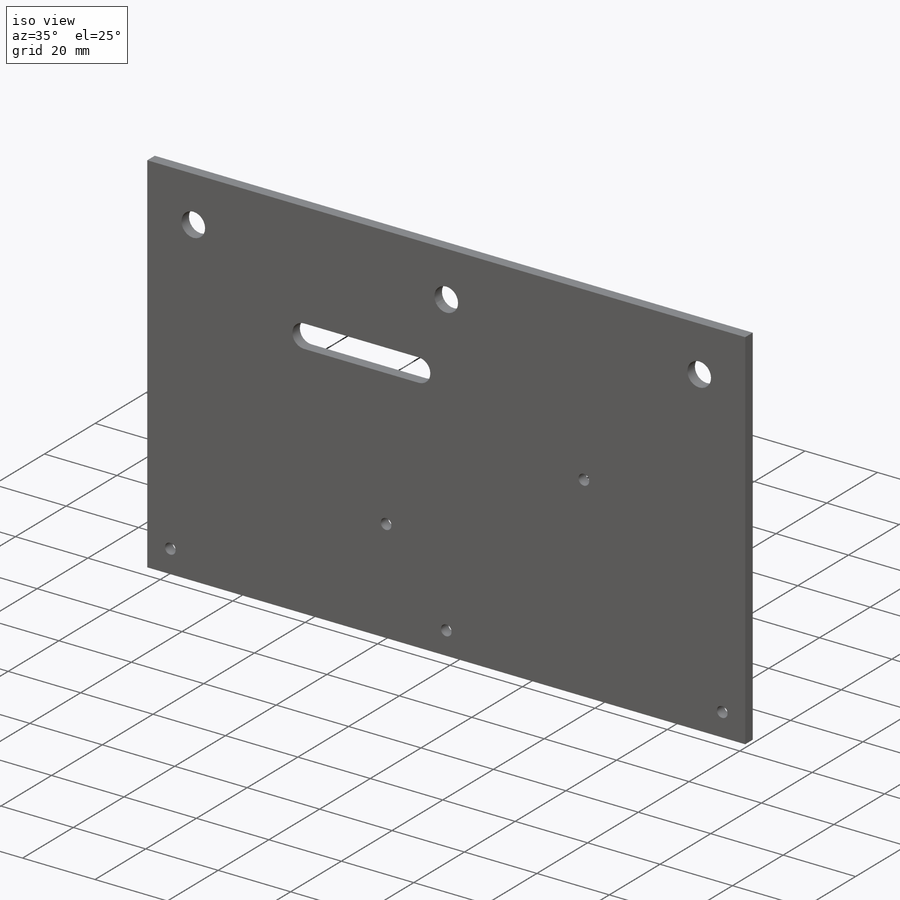
[diagram: iso view]
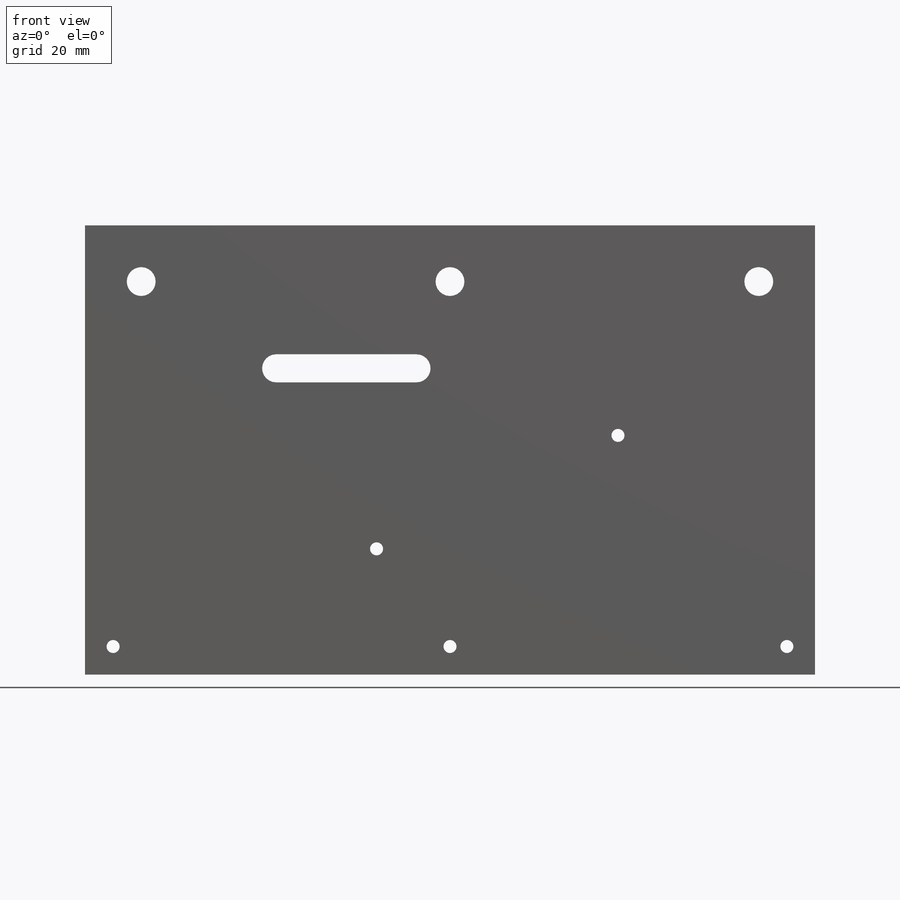
[diagram: front view]
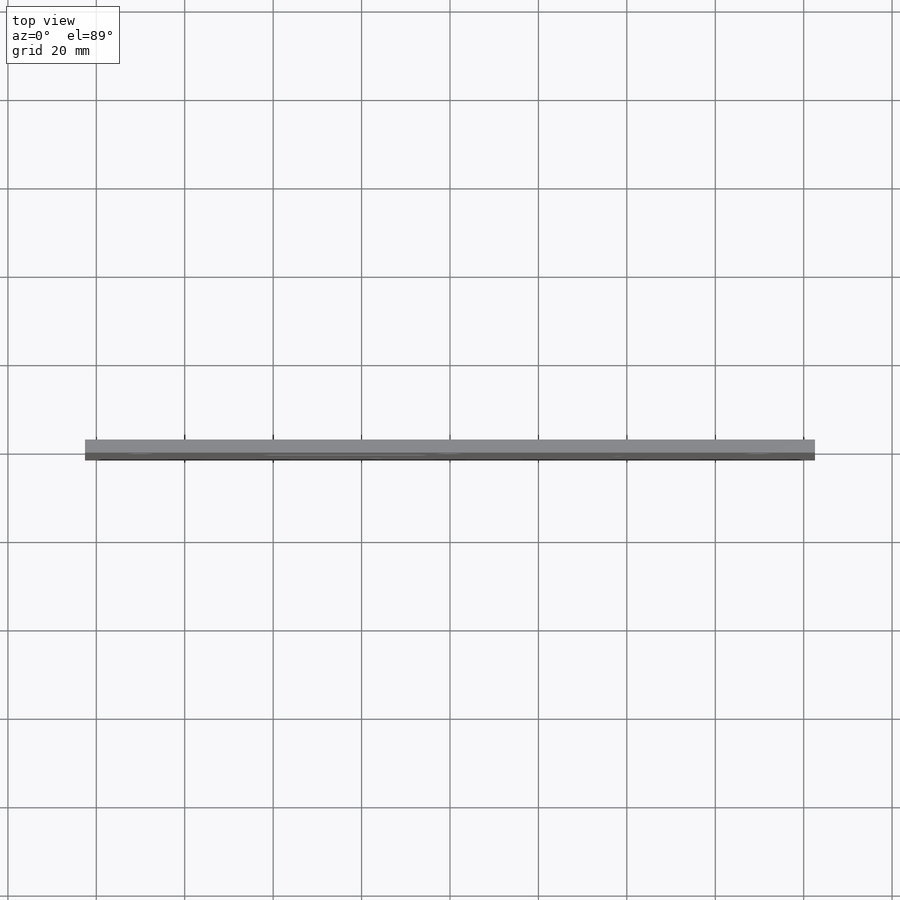
[diagram: top view]
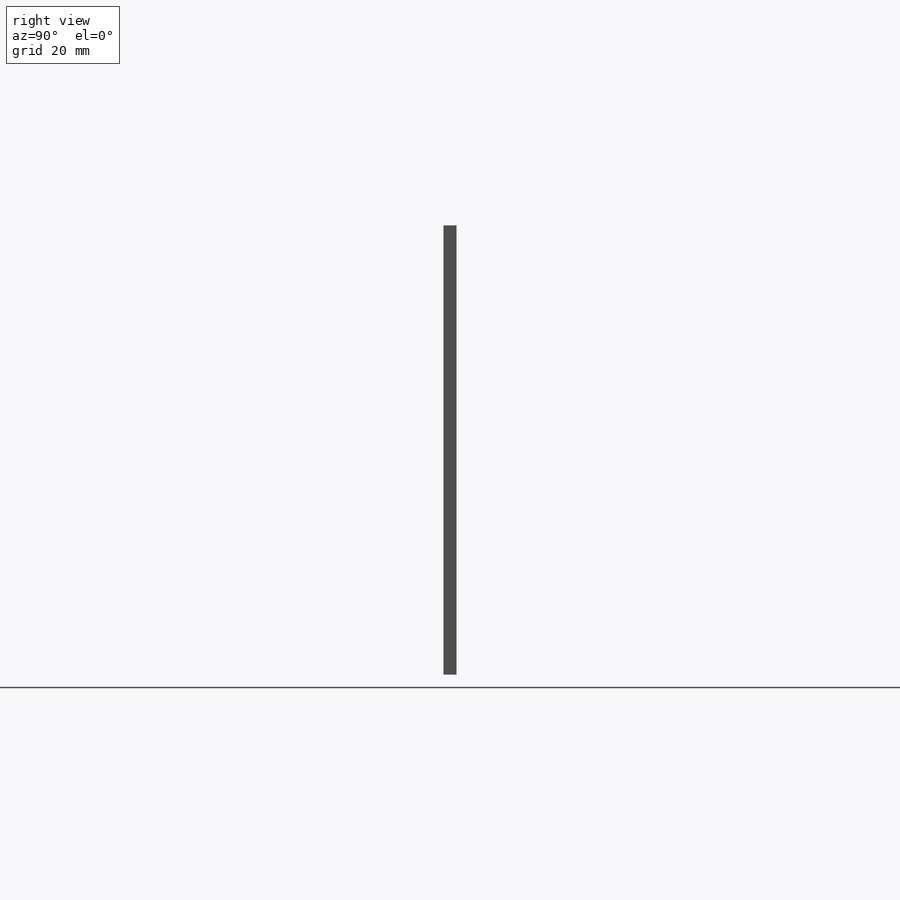
[diagram: right view]
SOLIDWORKS PART (.sldprt)
format: sldprt  version: not decoded by parser v0  size: 236,032 bytes
history: native  units: mm
features: sketch x5, hole x2, material x1, extrude x1 (+12 scaffold rows collapsed)
feature tree (21):
  scaffold x12  (default folders/planes/origin — collapsed)
  material  "Material <not specified>"
  sketch  "Sketch1"  dims[c1.D3=3.048mm c1.D12=3.175mm c1.D1=~84.506313mm c1.D2=~108.727463mm c2.D1=165.1mm c2.D2=101.6mm c2.D4=54.61mm c2.D5=25.654mm c2.D6=~52.337654mm c2.D7=~83.607184mm c3.D6=85.0mm c3.D7=56.0mm c3.D8=4.5mm c3.D9=12.0mm c3.D10=25.4mm c3.D11=31.75mm c3.D13=3.175mm]
  extrude  "Boss-Extrude1"  Depth=2.9591mm
  hole  "1/4 Clearance Hole1"  Diameter=6.5278mm Depth=2.9591mm
  sketch  "Sketch5"  dims[c1.D1=12.7mm c1.D2=12.7mm c1.D3=12.7mm c1.D4=12.7mm c2.D1=12.7mm c2.D2=12.7mm c2.D3=12.7mm]
  sketch  "Sketch4"  dims[hole-wizard template sketch: 60 standard entries collapsed; hole parameters kept: c18.Thru Hole Depth=2.9591mm]
  hole  "#4 Clearance Hole1"  Diameter=2.9464mm Depth=2.9591mm
  sketch  "Sketch7"  dims[c1.D1=6.35mm c1.D2=6.35mm c1.D3=6.35mm c1.D4=6.35mm c2.D1=6.35mm c2.D2=6.35mm c2.D3=6.35mm c2.D4=~6.392382mm c3.D4=90.0deg c4.D4=6.35mm c4.D5=~3.995813mm]
  sketch  "Sketch6"  dims[hole-wizard template sketch: 60 standard entries collapsed; hole parameters kept: c18.Thru Hole Depth=2.9591mm]
decode coverage: 8 of 8 modeling features carry decoded parameters
note: ~ marks probable driven/reference dimensions
note: suppression state not decoded; provenance and decode notes live in map.json
